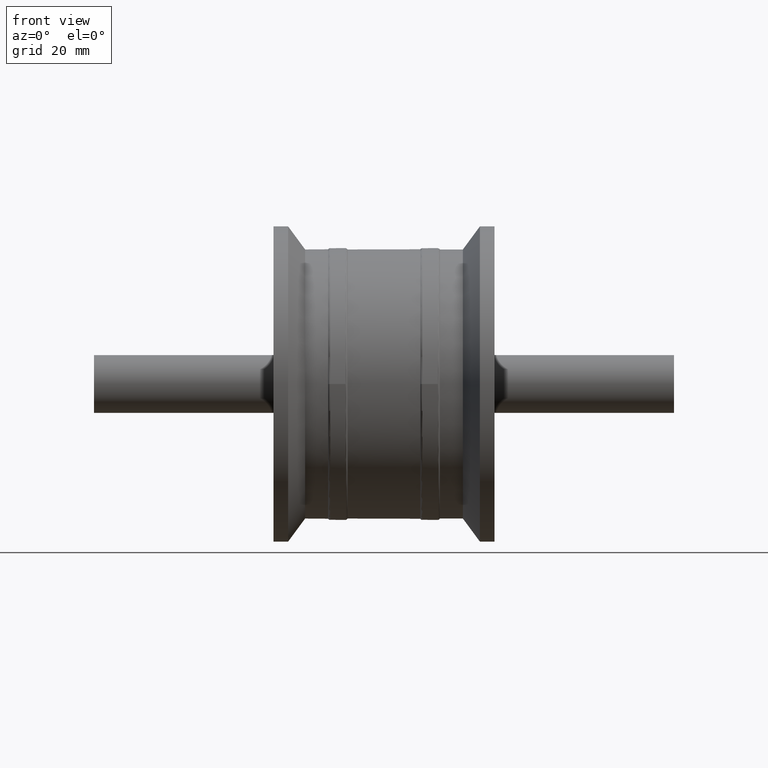
[diagram: clean part render]
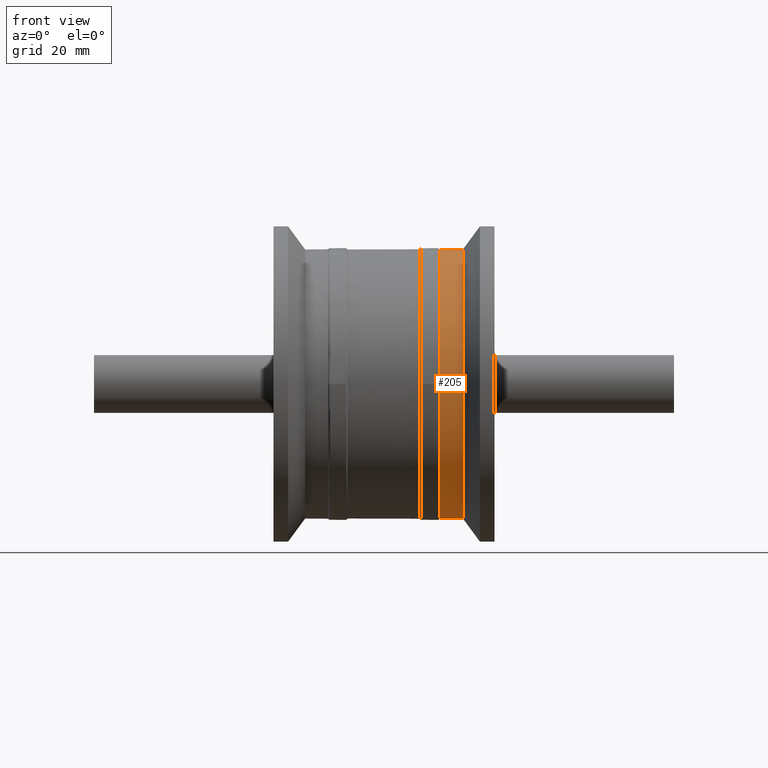
[diagram: same view with one face highlighted and labeled with its STEP entity id]
A machine part, front view. The second image highlights one B-rep face of the part: STEP entity #205.
In plain terms, the highlighted cylindrical surface (bore or boss wall) has radius 27.75 mm, axis along (1, 0, 0).
Its self-contained STEP definition (entity closure, byte-faithful):
#24=CYLINDRICAL_SURFACE('',#238,27.75);
#39=FACE_BOUND('',#85,.T.);
#56=FACE_OUTER_BOUND('',#84,.T.);
#84=EDGE_LOOP('',(#174));
#85=EDGE_LOOP('',(#175));
#103=CIRCLE('',#219,27.75);
#113=CIRCLE('',#237,27.75);
#121=VERTEX_POINT('',#334);
#131=VERTEX_POINT('',#362);
#139=EDGE_CURVE('',#121,#121,#103,.T.);
#149=EDGE_CURVE('',#131,#131,#113,.T.);
#174=ORIENTED_EDGE('',*,*,#149,.F.);
#175=ORIENTED_EDGE('',*,*,#139,.T.);
#205=ADVANCED_FACE('',(#56,#39),#24,.T.);
#219=AXIS2_PLACEMENT_3D('',#335,#260,#261);
#237=AXIS2_PLACEMENT_3D('',#363,#296,#297);
#238=AXIS2_PLACEMENT_3D('',#364,#298,#299);
#260=DIRECTION('center_axis',(1.,3.16459002187477E-16,0.));
#261=DIRECTION('ref_axis',(0.,0.,-1.));
#296=DIRECTION('center_axis',(1.,3.16459002187477E-16,0.));
#297=DIRECTION('ref_axis',(0.,0.,-1.));
#298=DIRECTION('center_axis',(1.,3.16459002187477E-16,0.));
#299=DIRECTION('ref_axis',(-3.16459002187477E-16,1.,0.));
#334=CARTESIAN_POINT('',(11.5,27.75,0.));
#335=CARTESIAN_POINT('Origin',(11.5,3.63927852515599E-15,0.));
#362=CARTESIAN_POINT('',(16.25,27.75,0.));
#363=CARTESIAN_POINT('Origin',(16.25,5.1424587855465E-15,0.));
#364=CARTESIAN_POINT('Origin',(13.875,4.39086865535125E-15,0.));